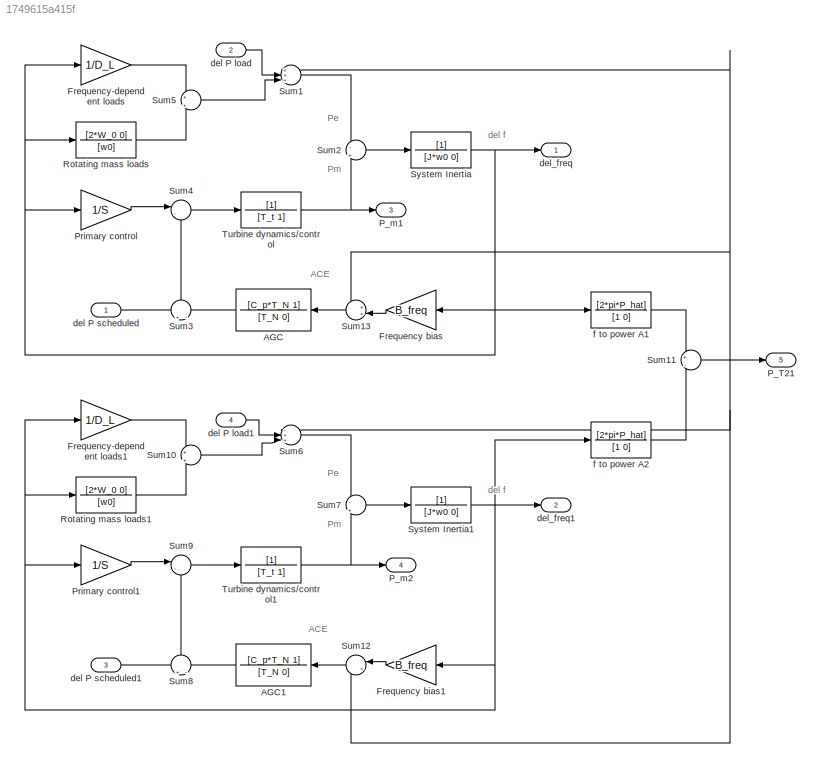
MODEL slx_1749615a415f
KIND model
CONFIG AbsTol = auto
CONFIG EnableMultiTasking = off
CONFIG FixedStep = auto
CONFIG MaxStep = auto
CONFIG MinStep = auto
CONFIG RelTol = 1e-3
CONFIG SampleTimeConstraint = Unconstrained
CONFIG Solver = VariableStepAuto
CONFIG SolverName = VariableStepAuto
CONFIG StartTime = 0.0
CONFIG StopTime = 10.0
BLOCK [TransferFcn] AGC
  Denominator = [T_N 0]
  Numerator = [C_p*T_N 1]
BLOCK [TransferFcn] AGC1
  Denominator = [T_N 0]
  Numerator = [C_p*T_N 1]
BLOCK [Gain] Frequency bias
  Gain = B_freq
  OutDataTypeStr = Inherit: Inherit via internal rule
  ParamDataTypeStr = Inherit: Inherit via internal rule
  SaturateOnIntegerOverflow = off
BLOCK [Gain] Frequency bias1
  Gain = B_freq
  OutDataTypeStr = Inherit: Inherit via internal rule
  ParamDataTypeStr = Inherit: Inherit via internal rule
  SaturateOnIntegerOverflow = off
BLOCK [Gain] Frequency-dependent loads
  Gain = 1/D_L
  OutDataTypeStr = Inherit: Inherit via internal rule
  ParamDataTypeStr = Inherit: Inherit via internal rule
  SaturateOnIntegerOverflow = off
BLOCK [Gain] Frequency-dependent loads1
  Gain = 1/D_L
  OutDataTypeStr = Inherit: Inherit via internal rule
  ParamDataTypeStr = Inherit: Inherit via internal rule
  SaturateOnIntegerOverflow = off
BLOCK [Outport] P_T21
  IconDisplay = Port number
  Port = 5
BLOCK [Outport] P_m1
  IconDisplay = Port number
  Port = 3
BLOCK [Outport] P_m2
  IconDisplay = Port number
  Port = 4
BLOCK [Gain] Primary control
  Gain = 1/S
  OutDataTypeStr = Inherit: Inherit via internal rule
  ParamDataTypeStr = Inherit: Inherit via internal rule
  SaturateOnIntegerOverflow = off
BLOCK [Gain] Primary control1
  Gain = 1/S
  OutDataTypeStr = Inherit: Inherit via internal rule
  ParamDataTypeStr = Inherit: Inherit via internal rule
  SaturateOnIntegerOverflow = off
BLOCK [TransferFcn] Rotating mass loads
  Denominator = [w0]
  Numerator = [2*W_0 0]
BLOCK [TransferFcn] Rotating mass loads1
  Denominator = [w0]
  Numerator = [2*W_0 0]
BLOCK [Sum] Sum1
  IconShape = round
  InputSameDT = off
  Inputs = +++|
  OutDataTypeStr = Inherit: Inherit via internal rule
  Ports = [3, 1]
  SaturateOnIntegerOverflow = off
BLOCK [Sum] Sum10
  IconShape = round
  InputSameDT = off
  Inputs = +|+
  OutDataTypeStr = Inherit: Inherit via internal rule
  Ports = [2, 1]
  SaturateOnIntegerOverflow = off
BLOCK [Sum] Sum11
  IconShape = round
  InputSameDT = off
  Inputs = +|-
  OutDataTypeStr = Inherit: Inherit via internal rule
  Ports = [2, 1]
  SaturateOnIntegerOverflow = off
BLOCK [Sum] Sum12
  IconShape = round
  InputSameDT = off
  Inputs = |+-
  OutDataTypeStr = Inherit: Inherit via internal rule
  Ports = [2, 1]
  SaturateOnIntegerOverflow = off
BLOCK [Sum] Sum13
  IconShape = round
  InputSameDT = off
  Inputs = ++|
  OutDataTypeStr = Inherit: Inherit via internal rule
  Ports = [2, 1]
  SaturateOnIntegerOverflow = off
BLOCK [Sum] Sum2
  IconShape = round
  InputSameDT = off
  Inputs = -|+
  OutDataTypeStr = Inherit: Inherit via internal rule
  Ports = [2, 1]
  SaturateOnIntegerOverflow = off
BLOCK [Sum] Sum3
  IconShape = round
  InputSameDT = off
  Inputs = +|-
  OutDataTypeStr = Inherit: Inherit via internal rule
  Ports = [2, 1]
  SaturateOnIntegerOverflow = off
BLOCK [Sum] Sum4
  IconShape = round
  InputSameDT = off
  Inputs = |-+
  OutDataTypeStr = Inherit: Inherit via internal rule
  Ports = [2, 1]
  SaturateOnIntegerOverflow = off
BLOCK [Sum] Sum5
  IconShape = round
  InputSameDT = off
  Inputs = +|+
  OutDataTypeStr = Inherit: Inherit via internal rule
  Ports = [2, 1]
  SaturateOnIntegerOverflow = off
BLOCK [Sum] Sum6
  IconShape = round
  InputSameDT = off
  Inputs = -++|
  OutDataTypeStr = Inherit: Inherit via internal rule
  Ports = [3, 1]
  SaturateOnIntegerOverflow = off
BLOCK [Sum] Sum7
  IconShape = round
  InputSameDT = off
  Inputs = -|+
  OutDataTypeStr = Inherit: Inherit via internal rule
  Ports = [2, 1]
  SaturateOnIntegerOverflow = off
BLOCK [Sum] Sum8
  IconShape = round
  InputSameDT = off
  Inputs = +|-
  OutDataTypeStr = Inherit: Inherit via internal rule
  Ports = [2, 1]
  SaturateOnIntegerOverflow = off
BLOCK [Sum] Sum9
  IconShape = round
  InputSameDT = off
  Inputs = |-+
  OutDataTypeStr = Inherit: Inherit via internal rule
  Ports = [2, 1]
  SaturateOnIntegerOverflow = off
BLOCK [TransferFcn] System Inertia
  Denominator = [J*w0 0]
BLOCK [TransferFcn] System Inertia1
  Denominator = [J*w0 0]
BLOCK [TransferFcn] Turbine dynamics//control
  Denominator = [T_t 1]
BLOCK [TransferFcn] Turbine dynamics//control1
  Denominator = [T_t 1]
BLOCK [Inport] del P load
  IconDisplay = Port number
  Port = 2
BLOCK [Inport] del P load1
  IconDisplay = Port number
  Port = 4
BLOCK [Inport] del P scheduled
  IconDisplay = Port number
BLOCK [Inport] del P scheduled1
  IconDisplay = Port number
  Port = 3
BLOCK [Outport] del_freq
  IconDisplay = Port number
BLOCK [Outport] del_freq1
  IconDisplay = Port number
  Port = 2
BLOCK [TransferFcn] f to power A1
  Denominator = [1 0]
  Numerator = [2*pi*P_hat]
BLOCK [TransferFcn] f to power A2
  Denominator = [1 0]
  Numerator = [2*pi*P_hat]
ANNOTATION (root): ACE
ANNOTATION (root): Pe
ANNOTATION (root): Pm
ANNOTATION (root): del f
LINE AGC1:1 -> Sum8:2
LINE AGC:1 -> Sum3:2
LINE Frequency bias1:1 -> Sum12:1
LINE Frequency bias:1 -> Sum13:2
LINE Frequency-dependent loads1:1 -> Sum10:1
LINE Frequency-dependent loads:1 -> Sum5:1
LINE Primary control1:1 -> Sum9:1
LINE Primary control:1 -> Sum4:1
LINE Rotating mass loads1:1 -> Sum10:2
LINE Rotating mass loads:1 -> Sum5:2
LINE Sum10:1 -> Sum6:3
NET Sum11:1 -> P_T21:1, Sum12:2, Sum13:1, Sum1:1, Sum6:1
LINE Sum12:1 -> AGC1:1
LINE Sum13:1 -> AGC:1
LINE Sum1:1 -> Sum2:1
LINE Sum2:1 -> System Inertia:1
LINE Sum3:1 -> Sum4:2
LINE Sum4:1 -> Turbine dynamics//control:1
LINE Sum5:1 -> Sum1:3
LINE Sum6:1 -> Sum7:1
LINE Sum7:1 -> System Inertia1:1
LINE Sum8:1 -> Sum9:2
LINE Sum9:1 -> Turbine dynamics//control1:1
NET System Inertia1:1 -> Frequency bias1:1, Frequency-dependent loads1:1, Primary control1:1, Rotating mass loads1:1, del_freq1:1, f to power A2:1
NET System Inertia:1 -> Frequency bias:1, Frequency-dependent loads:1, Primary control:1, Rotating mass loads:1, del_freq:1, f to power A1:1
NET Turbine dynamics//control1:1 -> P_m2:1, Sum7:2
NET Turbine dynamics//control:1 -> P_m1:1, Sum2:2
LINE del P load1:1 -> Sum6:2
LINE del P load:1 -> Sum1:2
LINE del P scheduled1:1 -> Sum8:1
LINE del P scheduled:1 -> Sum3:1
LINE f to power A1:1 -> Sum11:1
LINE f to power A2:1 -> Sum11:2
note: NET lines group one-source signal fan-out (src -> all destinations, sorted); 1:1 wires keep LINE
